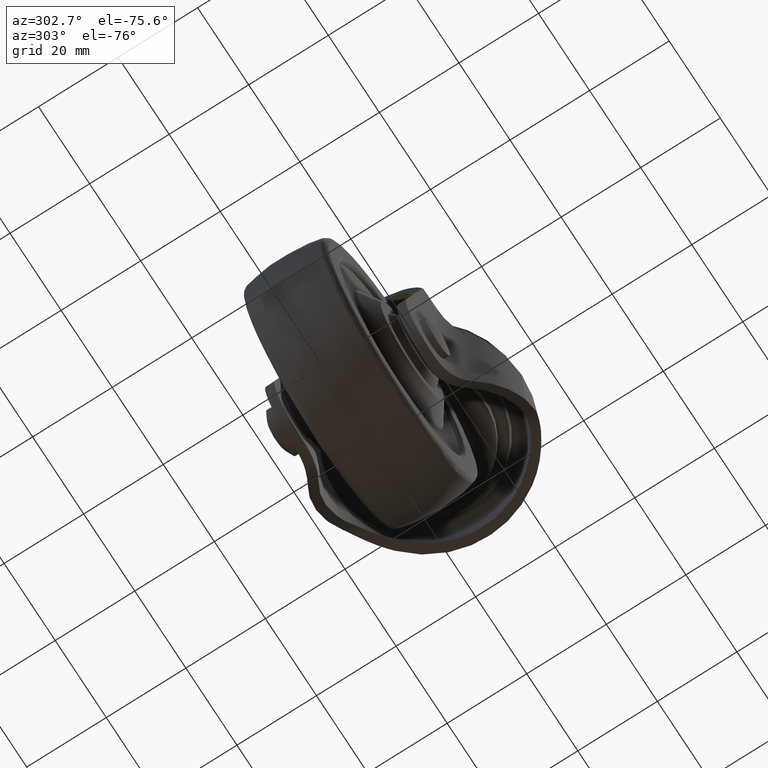
[diagram: clean part render]
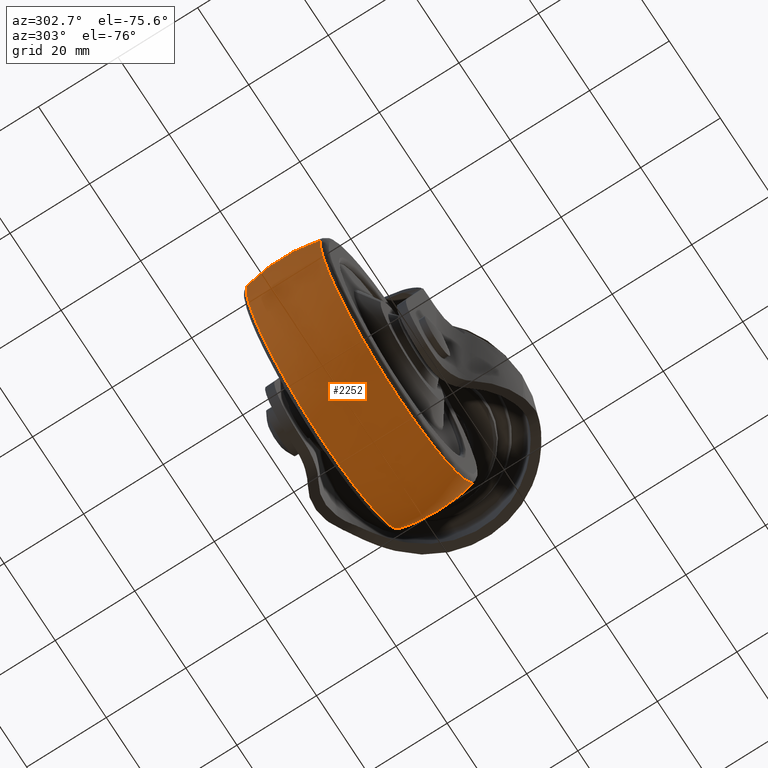
[diagram: same view with one face highlighted and labeled with its STEP entity id]
A machine part, auxiliary view. The second image highlights one B-rep face of the part: STEP entity #2252.
In plain terms, the highlighted face is a freeform B-spline surface patch.
Its self-contained STEP definition (entity closure, byte-faithful):
#1626=CARTESIAN_POINT('',(-25.0,9.350623064382614,-20.108380466054150));
#1627=VERTEX_POINT('',#1626);
#1641=CARTESIAN_POINT('',(3.367326015496355,9.350641237134727,-61.406569718239680));
#1642=VERTEX_POINT('',#1641);
#1643=CARTESIAN_POINT('',(3.367326015496355,9.350641237134727,-61.406569718239680));
#1644=CARTESIAN_POINT('',(5.391714351152507,9.350638940134219,-56.141210421641645));
#1645=CARTESIAN_POINT('',(5.391714238432809,9.350636471539788,-50.500097233895453));
#1646=CARTESIAN_POINT('',(5.391713631151045,9.350623171891312,-20.108380626431600));
#1647=CARTESIAN_POINT('',(-25.0,9.350623064382614,-20.108380466054150));
#1655=(BOUNDED_CURVE()B_SPLINE_CURVE(2,(#1643,#1644,#1645,#1646,#1647),.UNSPECIFIED.,.F.,.U.)B_SPLINE_CURVE_WITH_KNOTS((3,2,3),(0.189060931279049,0.250000000000000,0.500000000000000),.UNSPECIFIED.)CURVE()GEOMETRIC_REPRESENTATION_ITEM()RATIONAL_B_SPLINE_CURVE((0.892016624050637,0.928605440043307,1.0,0.707106781186548,1.0))REPRESENTATION_ITEM(''));
#1656=EDGE_CURVE('',#1642,#1627,#1655,.T.);
#1713=CARTESIAN_POINT('',(-25.0,9.350649350649350,-80.891813214015144));
#1714=VERTEX_POINT('',#1713);
#1715=CARTESIAN_POINT('',(-25.0,9.350649350649350,-80.891813214015144));
#1716=CARTESIAN_POINT('',(-4.124224570673237,9.350649507164437,-80.891813447498478));
#1717=CARTESIAN_POINT('',(3.367326015496355,9.350641237134727,-61.406569718239680));
#1725=(BOUNDED_CURVE()B_SPLINE_CURVE(2,(#1715,#1716,#1717),.UNSPECIFIED.,.F.,.U.)B_SPLINE_CURVE_WITH_KNOTS((3,3),(0.0,0.189060931279050),.UNSPECIFIED.)CURVE()GEOMETRIC_REPRESENTATION_ITEM()RATIONAL_B_SPLINE_CURVE((1.0,0.778501341143241,0.892016624050637))REPRESENTATION_ITEM(''));
#1726=EDGE_CURVE('',#1714,#1642,#1725,.T.);
#1728=CARTESIAN_POINT('',(-55.188447871357702,9.350636541606473,-46.990964153061292));
#1729=VERTEX_POINT('',#1728);
#1730=CARTESIAN_POINT('',(-55.188447871357681,9.350636541606473,-46.990964153061299));
#1731=CARTESIAN_POINT('',(-55.391716194160409,9.350636871965811,-48.739644696766256));
#1732=CARTESIAN_POINT('',(-55.391716105562182,9.350637242950869,-50.500099663883631));
#1733=CARTESIAN_POINT('',(-55.391714576041522,9.350643647472310,-80.891813055691813));
#1734=CARTESIAN_POINT('',(-25.0,9.350649350649350,-80.891813214015144));
#1742=(BOUNDED_CURVE()B_SPLINE_CURVE(2,(#1730,#1731,#1732,#1733,#1734),.UNSPECIFIED.,.F.,.U.)B_SPLINE_CURVE_WITH_KNOTS((3,2,3),(0.730000113482887,0.750000000000000,1.0),.UNSPECIFIED.)CURVE()GEOMETRIC_REPRESENTATION_ITEM()RATIONAL_B_SPLINE_CURVE((0.956886341552614,0.976568675448396,1.0,0.707106781186548,1.0))REPRESENTATION_ITEM(''));
#1743=EDGE_CURVE('',#1729,#1714,#1742,.T.);
#1794=CARTESIAN_POINT('',(-16.868627224286460,-9.350649156265154,-79.783832835018558));
#1795=VERTEX_POINT('',#1794);
#1796=CARTESIAN_POINT('',(4.700853484253470,-9.350642655611974,-44.056840512088911));
#1797=VERTEX_POINT('',#1796);
#1798=CARTESIAN_POINT('',(-16.868627224286453,-9.350649156265154,-79.783832835018558));
#1799=CARTESIAN_POINT('',(5.391713214015146,-9.350647996476358,-73.602683170462868));
#1800=CARTESIAN_POINT('',(5.391713214015149,-9.350643704483264,-50.500098642508142));
#1801=CARTESIAN_POINT('',(5.391713214015149,-9.350643099088861,-47.241431855141904));
#1802=CARTESIAN_POINT('',(4.700853484253469,-9.350642655611974,-44.056840512088911));
#1810=(BOUNDED_CURVE()B_SPLINE_CURVE(2,(#1798,#1799,#1800,#1801,#1802),.UNSPECIFIED.,.F.,.U.)B_SPLINE_CURVE_WITH_KNOTS((3,2,3),(0.045601389136401,0.250000000000000,0.286296732798200),.UNSPECIFIED.)CURVE()GEOMETRIC_REPRESENTATION_ITEM()RATIONAL_B_SPLINE_CURVE((0.912639460442401,0.760532131772649,1.0,0.957475732393294,0.927299400616666))REPRESENTATION_ITEM(''));
#1811=EDGE_CURVE('',#1795,#1797,#1810,.T.);
#1896=CARTESIAN_POINT('',(-25.0,-9.350649350649340,-80.891813214015144));
#1897=VERTEX_POINT('',#1896);
#1898=CARTESIAN_POINT('',(-25.0,-9.350649350649340,-80.891813214015144));
#1899=CARTESIAN_POINT('',(-20.858826948056375,-9.350649350649340,-80.891813214015130));
#1900=CARTESIAN_POINT('',(-16.868627224286453,-9.350649156265154,-79.783832835018558));
#1908=(BOUNDED_CURVE()B_SPLINE_CURVE(2,(#1898,#1899,#1900),.UNSPECIFIED.,.F.,.U.)B_SPLINE_CURVE_WITH_KNOTS((3,3),(0.0,0.045601389136401),.UNSPECIFIED.)CURVE()GEOMETRIC_REPRESENTATION_ITEM()RATIONAL_B_SPLINE_CURVE((1.0,0.946574649413899,0.912639460442401))REPRESENTATION_ITEM(''));
#1909=EDGE_CURVE('',#1897,#1795,#1908,.T.);
#1958=CARTESIAN_POINT('',(-25.0,-9.350638058317191,-20.108384071001119));
#1959=VERTEX_POINT('',#1958);
#1960=CARTESIAN_POINT('',(4.700853484253470,-9.350642655611974,-44.056840512088918));
#1961=CARTESIAN_POINT('',(-0.494488514605450,-9.350638058317191,-20.108384071001119));
#1962=CARTESIAN_POINT('',(-25.0,-9.350638058317191,-20.108384071001119));
#1970=(BOUNDED_CURVE()B_SPLINE_CURVE(2,(#1960,#1961,#1962),.UNSPECIFIED.,.F.,.U.)B_SPLINE_CURVE_WITH_KNOTS((3,3),(0.286296732798200,0.500000000000000),.UNSPECIFIED.)CURVE()GEOMETRIC_REPRESENTATION_ITEM()RATIONAL_B_SPLINE_CURVE((0.927299400616665,0.749631048793254,1.0))REPRESENTATION_ITEM(''));
#1971=EDGE_CURVE('',#1797,#1959,#1970,.T.);
#1973=CARTESIAN_POINT('',(-55.188446997482117,-9.350640219503262,-46.990964293674068));
#1974=VERTEX_POINT('',#1973);
#1988=CARTESIAN_POINT('',(-55.188446997482117,-9.350640219503262,-46.990964293674068));
#1989=CARTESIAN_POINT('',(-55.391715338461822,-9.350640455005586,-48.739644815684343));
#1990=CARTESIAN_POINT('',(-55.391715275303078,-9.350640719468649,-50.500099760393802));
#1991=CARTESIAN_POINT('',(-55.391714184958573,-9.350645285041688,-80.891813101151698));
#1992=CARTESIAN_POINT('',(-25.0,-9.350649350649340,-80.891813214015144));
#2000=(BOUNDED_CURVE()B_SPLINE_CURVE(2,(#1988,#1989,#1990,#1991,#1992),.UNSPECIFIED.,.F.,.U.)B_SPLINE_CURVE_WITH_KNOTS((3,2,3),(0.730000113698683,0.750000000000000,1.0),.UNSPECIFIED.)CURVE()GEOMETRIC_REPRESENTATION_ITEM()RATIONAL_B_SPLINE_CURVE((0.956886341977353,0.976568675701217,1.0,0.707106781186548,1.0))REPRESENTATION_ITEM(''));
#2001=EDGE_CURVE('',#1974,#1897,#2000,.T.);
#2160=CARTESIAN_POINT('',(-54.950383638808297,-10.296549197088328,-47.018617365391535));
#2161=CARTESIAN_POINT('',(-56.289316711442140,-5.236506368770334,-46.862977547969045));
#2162=CARTESIAN_POINT('',(-56.289316711442147,7.715038E-015,-46.862977547969059));
#2163=CARTESIAN_POINT('',(-56.289316711442140,5.236506368770344,-46.862977547969066));
#2164=CARTESIAN_POINT('',(-54.950383638808312,10.296549197088334,-47.018617365391542));
#2165=CARTESIAN_POINT('',(-55.152051363827255,-10.296549197088327,-48.753517798856514));
#2166=CARTESIAN_POINT('',(-56.500000000000000,-5.236506368770335,-48.675436773204652));
#2167=CARTESIAN_POINT('',(-56.499999999999993,7.715038E-015,-48.675436773204659));
#2168=CARTESIAN_POINT('',(-56.500000000000000,5.236506368770345,-48.675436773204652));
#2169=CARTESIAN_POINT('',(-55.152051363827255,10.296549197088336,-48.753517798856507));
#2170=CARTESIAN_POINT('',(-55.152051363827255,-10.296549197088330,-50.500100000000010));
#2171=CARTESIAN_POINT('',(-56.500000000000000,-5.236506368770335,-50.500100000000003));
#2172=CARTESIAN_POINT('',(-56.500000000000000,7.715038E-015,-50.500100000000003));
#2173=CARTESIAN_POINT('',(-56.500000000000007,5.236506368770344,-50.500099999999989));
#2174=CARTESIAN_POINT('',(-55.152051363827240,10.296549197088330,-50.500099999999982));
#2175=CARTESIAN_POINT('',(-55.152051363827255,-10.296549197088328,-80.652151363827244));
#2176=CARTESIAN_POINT('',(-56.500000000000007,-5.236506368770334,-82.000099999999989));
#2177=CARTESIAN_POINT('',(-56.500000000000000,7.715038E-015,-82.000099999999989));
#2178=CARTESIAN_POINT('',(-56.500000000000007,5.236506368770344,-82.000099999999989));
#2179=CARTESIAN_POINT('',(-55.152051363827255,10.296549197088334,-80.652151363827215));
#2180=CARTESIAN_POINT('',(-25.000000000000007,-10.296549197088330,-80.652151363827244));
#2181=CARTESIAN_POINT('',(-25.000000000000004,-5.236506368770335,-82.000099999999989));
#2182=CARTESIAN_POINT('',(-25.0,7.715038E-015,-82.000099999999989));
#2183=CARTESIAN_POINT('',(-25.000000000000004,5.236506368770344,-82.000099999999989));
#2184=CARTESIAN_POINT('',(-25.0,10.296549197088330,-80.652151363827230));
#2185=CARTESIAN_POINT('',(5.152051363827242,-10.296549197088328,-80.652151363827244));
#2186=CARTESIAN_POINT('',(6.499999999999998,-5.236506368770334,-82.000099999999989));
#2187=CARTESIAN_POINT('',(6.499999999999996,7.715038E-015,-82.000099999999989));
#2188=CARTESIAN_POINT('',(6.499999999999998,5.236506368770344,-82.000099999999989));
#2189=CARTESIAN_POINT('',(5.152051363827246,10.296549197088334,-80.652151363827215));
#2190=CARTESIAN_POINT('',(5.152051363827244,-10.296549197088330,-50.500100000000010));
#2191=CARTESIAN_POINT('',(6.499999999999999,-5.236506368770335,-50.500100000000003));
#2192=CARTESIAN_POINT('',(6.499999999999999,7.715038E-015,-50.500100000000003));
#2193=CARTESIAN_POINT('',(6.499999999999998,5.236506368770344,-50.500099999999989));
#2194=CARTESIAN_POINT('',(5.152051363827246,10.296549197088330,-50.500099999999982));
#2195=CARTESIAN_POINT('',(5.152051363827242,-10.296549197088328,-20.348048636172763));
#2196=CARTESIAN_POINT('',(6.499999999999998,-5.236506368770334,-19.000100000000007));
#2197=CARTESIAN_POINT('',(6.499999999999996,7.715038E-015,-19.000100000000010));
#2198=CARTESIAN_POINT('',(6.499999999999998,5.236506368770344,-19.000100000000007));
#2199=CARTESIAN_POINT('',(5.152051363827246,10.296549197088334,-20.348048636172763));
#2200=CARTESIAN_POINT('',(-25.000000000000007,-10.296549197088330,-20.348048636172756));
#2201=CARTESIAN_POINT('',(-25.000000000000004,-5.236506368770335,-19.000099999999996));
#2202=CARTESIAN_POINT('',(-25.0,7.715038E-015,-19.000100000000000));
#2203=CARTESIAN_POINT('',(-25.000000000000004,5.236506368770344,-19.000099999999996));
#2204=CARTESIAN_POINT('',(-25.0,10.296549197088330,-20.348048636172749));
#2212=(BOUNDED_SURFACE()B_SPLINE_SURFACE(2,2,((#2160,#2165,#2170,#2175,#2180,#2185,#2190,#2195,#2200),(#2161,#2166,#2171,#2176,#2181,#2186,#2191,#2196,#2201),(#2162,#2167,#2172,#2177,#2182,#2187,#2192,#2197,#2202),(#2163,#2168,#2173,#2178,#2183,#2188,#2193,#2198,#2203),(#2164,#2169,#2174,#2179,#2184,#2189,#2194,#2199,#2204)),.UNSPECIFIED.,.F.,.F.,.U.)B_SPLINE_SURFACE_WITH_KNOTS((3,2,3),(3,2,2,2,3),(0.0,10.772103718447200,21.544207436894389),(0.0,4.175271837691034,56.366180696701008,108.557089555711000,160.747998414720910),.UNSPECIFIED.)GEOMETRIC_REPRESENTATION_ITEM()RATIONAL_B_SPLINE_SURFACE(((0.889247260426734,0.907538401297480,0.929313568135483,0.657123925877267,0.929313568135483,0.657123925877267,0.929313568135483,0.657123925877267,0.929313568135483),(0.914642611511919,0.933456115469776,0.955853143101057,0.675890239305233,0.955853143101057,0.675890239305233,0.955853143101057,0.675890239305233,0.955853143101057),(0.956886126402807,0.976568547383107,1.0,0.707106781186548,1.0,0.707106781186548,1.0,0.707106781186548,1.0),(0.914642611511919,0.933456115469776,0.955853143101057,0.675890239305233,0.955853143101057,0.675890239305233,0.955853143101057,0.675890239305233,0.955853143101057),(0.889247260426734,0.907538401297480,0.929313568135483,0.657123925877267,0.929313568135483,0.657123925877267,0.929313568135483,0.657123925877267,0.929313568135483)))REPRESENTATION_ITEM('')SURFACE());
#2213=ORIENTED_EDGE('',*,*,#1743,.T.);
#2214=ORIENTED_EDGE('',*,*,#1726,.T.);
#2215=ORIENTED_EDGE('',*,*,#1656,.T.);
#2216=CARTESIAN_POINT('',(-25.0,-9.350638058317191,-20.108384071001122));
#2217=CARTESIAN_POINT('',(-25.000000000000004,-4.740998695849479,-19.000100000000003));
#2218=CARTESIAN_POINT('',(-25.0,7.715038E-015,-19.000100000000000));
#2219=CARTESIAN_POINT('',(-25.0,4.740990876924810,-19.000099999999996));
#2220=CARTESIAN_POINT('',(-25.0,9.350623064382614,-20.108380466054150));
#2228=(BOUNDED_CURVE()B_SPLINE_CURVE(2,(#2216,#2217,#2218,#2219,#2220),.UNSPECIFIED.,.F.,.U.)B_SPLINE_CURVE_WITH_KNOTS((3,2,3),(0.409347711942875,0.500000000000000,0.590652144552732),.UNSPECIFIED.)CURVE()GEOMETRIC_REPRESENTATION_ITEM()RATIONAL_B_SPLINE_CURVE((0.934279875238360,0.959862897211692,1.0,0.959862960749532,0.934279956235272))REPRESENTATION_ITEM(''));
#2229=EDGE_CURVE('',#1959,#1627,#2228,.T.);
#2230=ORIENTED_EDGE('',*,*,#2229,.F.);
#2231=ORIENTED_EDGE('',*,*,#1971,.F.);
#2232=ORIENTED_EDGE('',*,*,#1811,.F.);
#2233=ORIENTED_EDGE('',*,*,#1909,.F.);
#2234=ORIENTED_EDGE('',*,*,#2001,.F.);
#2235=CARTESIAN_POINT('',(-55.188446997482117,-9.350640219503262,-46.990964293674075));
#2236=CARTESIAN_POINT('',(-56.289318979312895,-4.740999822848255,-46.862997058052130));
#2237=CARTESIAN_POINT('',(-56.289318978177768,-1.113016E-013,-46.862997048288989));
#2238=CARTESIAN_POINT('',(-56.289318977042626,4.740997904925822,-46.862997038525847));
#2239=CARTESIAN_POINT('',(-55.188447871357695,9.350636541606473,-46.990964153061292));
#2247=(BOUNDED_CURVE()B_SPLINE_CURVE(2,(#2235,#2236,#2237,#2238,#2239),.UNSPECIFIED.,.F.,.U.)B_SPLINE_CURVE_WITH_KNOTS((3,2,3),(0.409347691258509,0.500000000000000,0.590652273540968),.UNSPECIFIED.)CURVE()GEOMETRIC_REPRESENTATION_ITEM()RATIONAL_B_SPLINE_CURVE((0.893999431949142,0.918479472944795,0.956886118190660,0.918479487858194,0.893999450960470))REPRESENTATION_ITEM(''));
#2248=EDGE_CURVE('',#1974,#1729,#2247,.T.);
#2249=ORIENTED_EDGE('',*,*,#2248,.T.);
#2250=EDGE_LOOP('',(#2213,#2214,#2215,#2230,#2231,#2232,#2233,#2234,#2249));
#2251=FACE_OUTER_BOUND('',#2250,.T.);
#2252=ADVANCED_FACE('',(#2251),#2212,.T.);